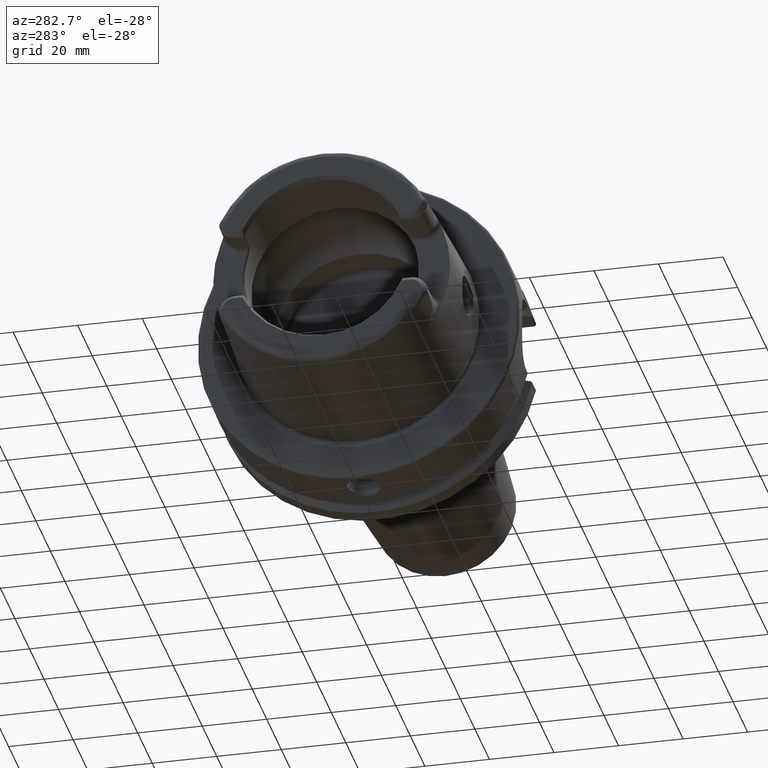
[diagram: clean part render]
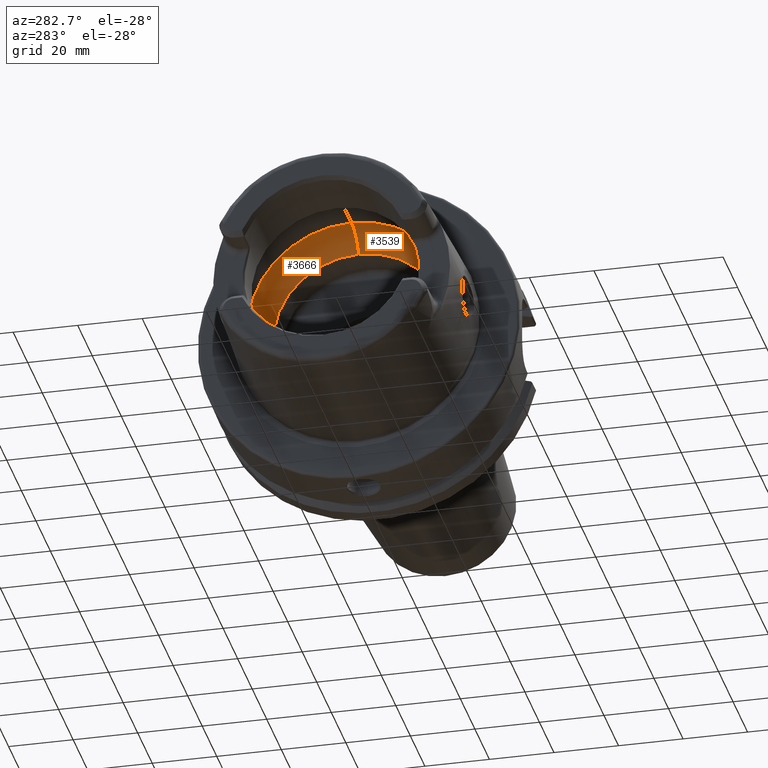
[diagram: same view with one multi-face feature highlighted, each face labeled with its STEP entity id]
A machine part, auxiliary view. The highlighted faces form ONE feature: a constant-radius fillet chain: 2 tangent blend faces with common blend radius 12 mm. The faces share edges in the B-rep.
Their STEP definitions:
[1] entity #3666 (Torus):
#227=CARTESIAN_POINT('',(3.259811553909E-1,0.E0,0.E0));
#228=DIRECTION('',(1.E0,0.E0,0.E0));
#229=DIRECTION('',(0.E0,0.E0,-1.E0));
#230=AXIS2_PLACEMENT_3D('',#227,#228,#229);
#366=CARTESIAN_POINT('',(-9.7468E0,0.E0,-1.9977801E1));
#367=DIRECTION('',(0.E0,1.E0,0.E0));
#368=DIRECTION('',(8.393984296159E-1,0.E0,-5.435165833333E-1));
#369=AXIS2_PLACEMENT_3D('',#366,#367,#368);
#371=CARTESIAN_POINT('',(-9.7468E0,0.E0,1.9977801E1));
#372=DIRECTION('',(0.E0,-1.E0,0.E0));
#373=DIRECTION('',(8.393984296159E-1,0.E0,5.435165833333E-1));
#374=AXIS2_PLACEMENT_3D('',#371,#372,#373);
#427=CARTESIAN_POINT('',(-9.7468E0,3.184612797556E1,-2.898946318923E0));
#444=CARTESIAN_POINT('',(-9.7468E0,0.E0,0.E0));
#445=DIRECTION('',(1.E0,0.E0,0.E0));
#446=DIRECTION('',(0.E0,0.E0,-1.E0));
#447=AXIS2_PLACEMENT_3D('',#444,#445,#446);
#449=CARTESIAN_POINT('',(-9.7468E0,0.E0,0.E0));
#450=DIRECTION('',(1.E0,0.E0,0.E0));
#451=DIRECTION('',(0.E0,9.958823615031E-1,9.065496151294E-2));
#452=AXIS2_PLACEMENT_3D('',#449,#450,#451);
#469=CARTESIAN_POINT('',(-9.7468E0,3.184612797556E1,2.898946318923E0));
#471=CARTESIAN_POINT('',(-9.E0,3.195454052960E1,0.E0));
#472=CARTESIAN_POINT('',(-9.E0,3.195454052960E1,-3.381119242272E-1));
#473=CARTESIAN_POINT('',(-9.057330735008E0,3.194747841027E1,-1.013009017261E0));
#474=CARTESIAN_POINT('',(-9.310459572189E0,3.191400600196E1,-1.992066362112E0));
#475=CARTESIAN_POINT('',(-9.585175880117E0,3.187278879370E1,-2.606066171047E0));
#476=CARTESIAN_POINT('',(-9.7468E0,3.184612797556E1,-2.898946318923E0));
#478=CARTESIAN_POINT('',(-9.7468E0,3.184612797556E1,2.898946318923E0));
#479=CARTESIAN_POINT('',(-9.585127357174E0,3.187279679784E1,2.605978242298E0));
#480=CARTESIAN_POINT('',(-9.310379938408E0,3.191401708557E1,1.991845080032E0));
#481=CARTESIAN_POINT('',(-9.057312584844E0,3.194748055750E1,1.012859366110E0));
#482=CARTESIAN_POINT('',(-9.E0,3.195454052960E1,3.380482648300E-1));
#483=CARTESIAN_POINT('',(-9.E0,3.195454052960E1,0.E0));
#2784=CARTESIAN_POINT('',(3.259811553909E-1,0.E0,-2.65E1));
#2785=CARTESIAN_POINT('',(3.259811553909E-1,0.E0,2.65E1));
#2786=VERTEX_POINT('',#2784);
#2787=VERTEX_POINT('',#2785);
#2788=CARTESIAN_POINT('',(-9.7468E0,0.E0,-3.1977801E1));
#2789=VERTEX_POINT('',#2788);
#2790=CARTESIAN_POINT('',(-9.7468E0,0.E0,3.1977801E1));
#2791=VERTEX_POINT('',#2790);
#3069=VERTEX_POINT('',#427);
#3071=VERTEX_POINT('',#469);
#3075=VERTEX_POINT('',#471);
#3652=CARTESIAN_POINT('',(-9.7468E0,0.E0,0.E0));
#3653=DIRECTION('',(1.E0,0.E0,0.E0));
#3654=DIRECTION('',(0.E0,0.E0,1.E0));
#3655=AXIS2_PLACEMENT_3D('',#3652,#3653,#3654);
#3656=TOROIDAL_SURFACE('',#3655,1.9977801E1,1.2E1);
#3657=ORIENTED_EDGE('',*,*,#3549,.F.);
#3658=ORIENTED_EDGE('',*,*,#3611,.F.);
#3659=ORIENTED_EDGE('',*,*,#3646,.T.);
#3660=ORIENTED_EDGE('',*,*,#3531,.F.);
#3661=ORIENTED_EDGE('',*,*,#3443,.F.);
#3662=ORIENTED_EDGE('',*,*,#3528,.T.);
#3663=ORIENTED_EDGE('',*,*,#3638,.T.);
#3664=EDGE_LOOP('',(#3657,#3658,#3659,#3660,#3661,#3662,#3663));
#3665=FACE_OUTER_BOUND('',#3664,.F.);
#3666=ADVANCED_FACE('',(#3665),#3656,.F.);
#231=CIRCLE('',#230,2.65E1);
#370=CIRCLE('',#369,1.2E1);
#375=CIRCLE('',#374,1.2E1);
#448=CIRCLE('',#447,3.1977801E1);
#453=CIRCLE('',#452,3.1977801E1);
#477=B_SPLINE_CURVE_WITH_KNOTS('',3,(#471,#472,#473,#474,#475,#476),
.UNSPECIFIED.,.F.,.F.,(4,1,1,4),(0.E0,3.333333333333E-1,6.666666666667E-1,1.E0),
.UNSPECIFIED.);
#484=B_SPLINE_CURVE_WITH_KNOTS('',3,(#478,#479,#480,#481,#482,#483),
.UNSPECIFIED.,.F.,.F.,(4,1,1,4),(0.E0,3.333333333333E-1,6.666666666667E-1,1.E0),
.UNSPECIFIED.);
#3443=EDGE_CURVE('',#2786,#2787,#231,.T.);
#3528=EDGE_CURVE('',#2786,#2789,#370,.T.);
#3531=EDGE_CURVE('',#2787,#2791,#375,.T.);
#3549=EDGE_CURVE('',#3075,#3069,#477,.T.);
#3611=EDGE_CURVE('',#3071,#3075,#484,.T.);
#3638=EDGE_CURVE('',#2789,#3069,#448,.T.);
#3646=EDGE_CURVE('',#3071,#2791,#453,.T.);
[2] entity #3539 (Torus):
#289=CARTESIAN_POINT('',(3.259811553909E-1,0.E0,0.E0));
#290=DIRECTION('',(1.E0,0.E0,0.E0));
#291=DIRECTION('',(0.E0,0.E0,1.E0));
#292=AXIS2_PLACEMENT_3D('',#289,#290,#291);
#359=CARTESIAN_POINT('',(-9.7468E0,-3.184612797556E1,-2.898946318923E0));
#360=CARTESIAN_POINT('',(-9.585175880117E0,-3.187278879370E1,
-2.606066171047E0));
#361=CARTESIAN_POINT('',(-9.310459572189E0,-3.191400600196E1,
-1.992066362112E0));
#362=CARTESIAN_POINT('',(-9.057330735008E0,-3.194747841027E1,
-1.013009017261E0));
#363=CARTESIAN_POINT('',(-9.E0,-3.195454052960E1,-3.381119242272E-1));
#364=CARTESIAN_POINT('',(-9.E0,-3.195454052960E1,0.E0));
#366=CARTESIAN_POINT('',(-9.7468E0,0.E0,-1.9977801E1));
#367=DIRECTION('',(0.E0,1.E0,0.E0));
#368=DIRECTION('',(8.393984296159E-1,0.E0,-5.435165833333E-1));
#369=AXIS2_PLACEMENT_3D('',#366,#367,#368);
#371=CARTESIAN_POINT('',(-9.7468E0,0.E0,1.9977801E1));
#372=DIRECTION('',(0.E0,-1.E0,0.E0));
#373=DIRECTION('',(8.393984296159E-1,0.E0,5.435165833333E-1));
#374=AXIS2_PLACEMENT_3D('',#371,#372,#373);
#376=CARTESIAN_POINT('',(-9.E0,-3.195454052960E1,0.E0));
#377=CARTESIAN_POINT('',(-9.E0,-3.195454052960E1,3.380482648301E-1));
#378=CARTESIAN_POINT('',(-9.057312584844E0,-3.194748055750E1,1.012859366110E0));
#379=CARTESIAN_POINT('',(-9.310379938408E0,-3.191401708557E1,1.991845080032E0));
#380=CARTESIAN_POINT('',(-9.585127357174E0,-3.187279679784E1,2.605978242298E0));
#381=CARTESIAN_POINT('',(-9.7468E0,-3.184612797556E1,2.898946318923E0));
#500=CARTESIAN_POINT('',(-9.7468E0,-3.184612797556E1,-2.898946318923E0));
#502=CARTESIAN_POINT('',(-9.7468E0,-3.184612797556E1,2.898946318923E0));
#519=CARTESIAN_POINT('',(-9.7468E0,0.E0,0.E0));
#520=DIRECTION('',(1.E0,0.E0,0.E0));
#521=DIRECTION('',(0.E0,0.E0,1.E0));
#522=AXIS2_PLACEMENT_3D('',#519,#520,#521);
#532=CARTESIAN_POINT('',(-9.7468E0,0.E0,0.E0));
#533=DIRECTION('',(1.E0,0.E0,0.E0));
#534=DIRECTION('',(0.E0,-9.958823615031E-1,-9.065496151294E-2));
#535=AXIS2_PLACEMENT_3D('',#532,#533,#534);
#2784=CARTESIAN_POINT('',(3.259811553909E-1,0.E0,-2.65E1));
#2785=CARTESIAN_POINT('',(3.259811553909E-1,0.E0,2.65E1));
#2786=VERTEX_POINT('',#2784);
#2787=VERTEX_POINT('',#2785);
#2788=CARTESIAN_POINT('',(-9.7468E0,0.E0,-3.1977801E1));
#2789=VERTEX_POINT('',#2788);
#2790=CARTESIAN_POINT('',(-9.7468E0,0.E0,3.1977801E1));
#2791=VERTEX_POINT('',#2790);
#3073=VERTEX_POINT('',#500);
#3074=VERTEX_POINT('',#502);
#3076=VERTEX_POINT('',#364);
#3519=CARTESIAN_POINT('',(-9.7468E0,0.E0,0.E0));
#3520=DIRECTION('',(1.E0,0.E0,0.E0));
#3521=DIRECTION('',(0.E0,0.E0,1.E0));
#3522=AXIS2_PLACEMENT_3D('',#3519,#3520,#3521);
#3523=TOROIDAL_SURFACE('',#3522,1.9977801E1,1.2E1);
#3525=ORIENTED_EDGE('',*,*,#3524,.F.);
#3527=ORIENTED_EDGE('',*,*,#3526,.T.);
#3529=ORIENTED_EDGE('',*,*,#3528,.F.);
#3530=ORIENTED_EDGE('',*,*,#3485,.F.);
#3532=ORIENTED_EDGE('',*,*,#3531,.T.);
#3534=ORIENTED_EDGE('',*,*,#3533,.T.);
#3536=ORIENTED_EDGE('',*,*,#3535,.F.);
#3537=EDGE_LOOP('',(#3525,#3527,#3529,#3530,#3532,#3534,#3536));
#3538=FACE_OUTER_BOUND('',#3537,.F.);
#3539=ADVANCED_FACE('',(#3538),#3523,.F.);
#293=CIRCLE('',#292,2.65E1);
#365=B_SPLINE_CURVE_WITH_KNOTS('',3,(#359,#360,#361,#362,#363,#364),
.UNSPECIFIED.,.F.,.F.,(4,1,1,4),(0.E0,3.333333333333E-1,6.666666666667E-1,1.E0),
.UNSPECIFIED.);
#370=CIRCLE('',#369,1.2E1);
#375=CIRCLE('',#374,1.2E1);
#382=B_SPLINE_CURVE_WITH_KNOTS('',3,(#376,#377,#378,#379,#380,#381),
.UNSPECIFIED.,.F.,.F.,(4,1,1,4),(0.E0,3.333333333333E-1,6.666666666667E-1,1.E0),
.UNSPECIFIED.);
#523=CIRCLE('',#522,3.1977801E1);
#536=CIRCLE('',#535,3.1977801E1);
#3485=EDGE_CURVE('',#2787,#2786,#293,.T.);
#3524=EDGE_CURVE('',#3073,#3076,#365,.T.);
#3526=EDGE_CURVE('',#3073,#2789,#536,.T.);
#3528=EDGE_CURVE('',#2786,#2789,#370,.T.);
#3531=EDGE_CURVE('',#2787,#2791,#375,.T.);
#3533=EDGE_CURVE('',#2791,#3074,#523,.T.);
#3535=EDGE_CURVE('',#3076,#3074,#382,.T.);